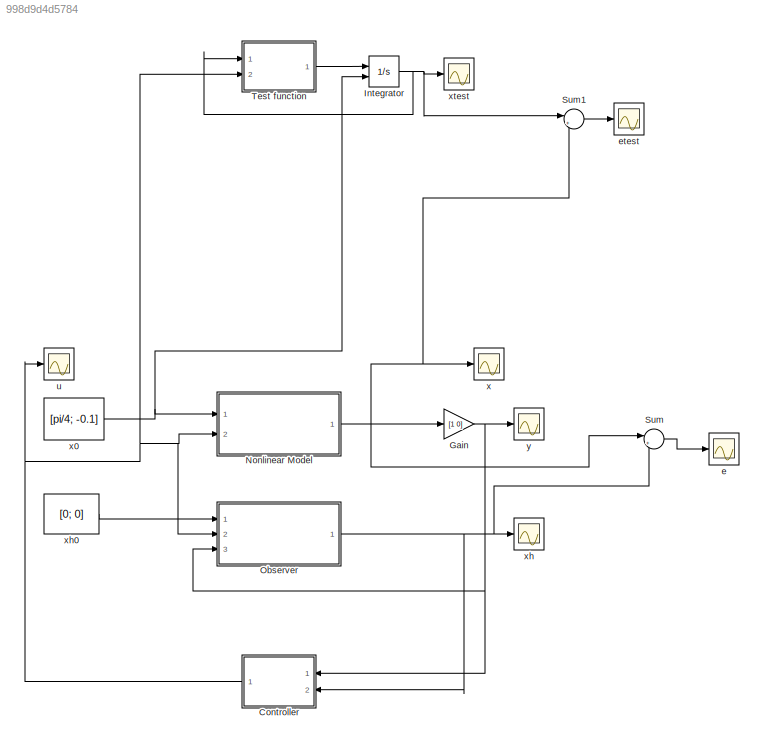
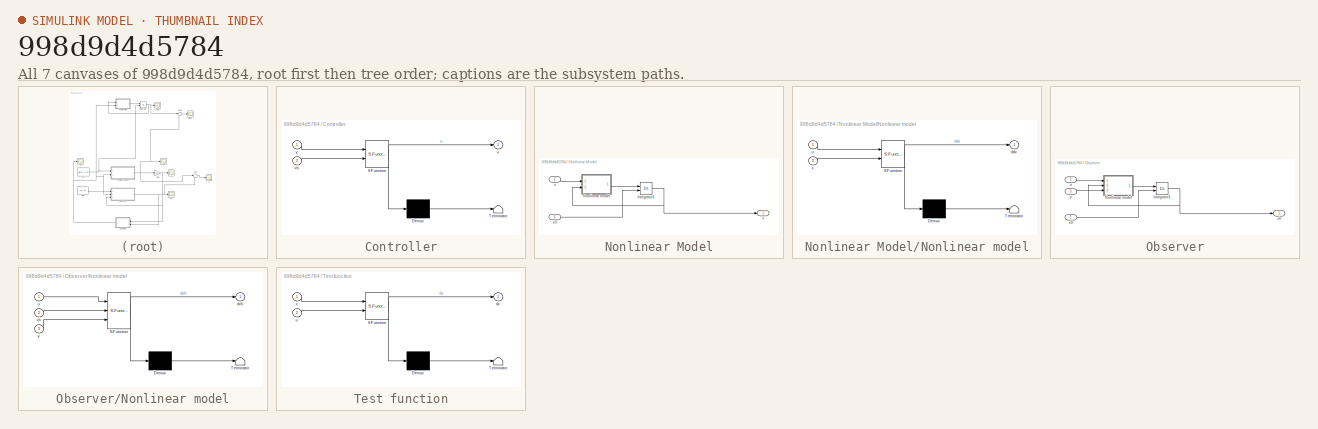
[diagram: thumbnail index - all 7 canvases of the model, root first then tree order]
MODEL slx_998d9d4d5784
KIND model
CONFIG AbsTol = auto
CONFIG FixedStep = auto
CONFIG MaxStep = auto
CONFIG MinStep = auto
CONFIG RelTol = 1e-5
CONFIG SampleTimeConstraint = Unconstrained
CONFIG Solver = VariableStepAuto
CONFIG SolverMode = Auto
CONFIG SolverName = VariableStepAuto
CONFIG StartTime = 0.0
CONFIG StopTime = 15
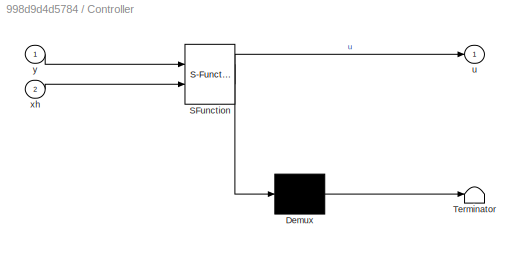
BLOCK [SubSystem] Controller
  ErrorFcn = Stateflow.Translate.translate
  PermitHierarchicalResolution = ExplicitOnly
  Ports = [2, 1]
  RequestExecContextInheritance = off
  SFBlockType = MATLAB Function
  TreatAsAtomicUnit = on
  Variant = off
BLOCK [Demux] Controller/ Demux 
  Outputs = 1
  Ports = [1, 1]
BLOCK [S-Function] Controller/ SFunction 
  EnableBusSupport = on
  FunctionName = sf_sfun
  PortCounts = [2 2]
  Ports = [2, 2]
  SFunctionDeploymentMode = off
  Tag = Stateflow S-Function mainSIM 3
BLOCK [Terminator] Controller/ Terminator 
BLOCK [Outport] Controller/u
  IconDisplay = Port number
BLOCK [Inport] Controller/xh
  IconDisplay = Port number
  Port = 2
BLOCK [Inport] Controller/y
  IconDisplay = Port number
BLOCK [Gain] Gain
  Gain = [1 0]
  Multiplication = Matrix(K*u) (u vector)
  OutDataTypeStr = Inherit: Inherit via internal rule
  ParamDataTypeStr = Inherit: Inherit via internal rule
  SaturateOnIntegerOverflow = off
BLOCK [Integrator] Integrator
  InitialConditionSource = external
  Ports = [2, 1]
BLOCK [SubSystem] Nonlinear Model
  Ports = [2, 1]
  RequestExecContextInheritance = off
  Variant = off
BLOCK [Integrator] Nonlinear Model/Integrator1
  InitialConditionSource = external
  Ports = [2, 1]
BLOCK [SubSystem] Nonlinear Model/Nonlinear model
  ErrorFcn = Stateflow.Translate.translate
  PermitHierarchicalResolution = ExplicitOnly
  Ports = [2, 1]
  RequestExecContextInheritance = off
  SFBlockType = MATLAB Function
  TreatAsAtomicUnit = on
  Variant = off
BLOCK [Demux] Nonlinear Model/Nonlinear model/ Demux 
  Outputs = 1
  Ports = [1, 1]
BLOCK [S-Function] Nonlinear Model/Nonlinear model/ SFunction 
  EnableBusSupport = on
  FunctionName = sf_sfun
  PortCounts = [2 2]
  Ports = [2, 2]
  SFunctionDeploymentMode = off
  Tag = Stateflow S-Function mainSIM 2
BLOCK [Terminator] Nonlinear Model/Nonlinear model/ Terminator 
BLOCK [Outport] Nonlinear Model/Nonlinear model/ddx
  IconDisplay = Port number
BLOCK [Inport] Nonlinear Model/Nonlinear model/u
  IconDisplay = Port number
BLOCK [Inport] Nonlinear Model/Nonlinear model/x
  IconDisplay = Port number
  Port = 2
BLOCK [Inport] Nonlinear Model/u
  IconDisplay = Port number
  Port = 2
BLOCK [Outport] Nonlinear Model/x
  IconDisplay = Port number
BLOCK [Inport] Nonlinear Model/x0
  IconDisplay = Port number
BLOCK [SubSystem] Observer
  Ports = [3, 1]
  RequestExecContextInheritance = off
  Variant = off
BLOCK [Integrator] Observer/Integrator1
  InitialConditionSource = external
  Ports = [2, 1]
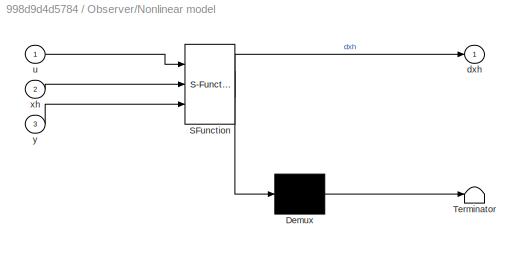
BLOCK [SubSystem] Observer/Nonlinear model
  ErrorFcn = Stateflow.Translate.translate
  PermitHierarchicalResolution = ExplicitOnly
  Ports = [3, 1]
  RequestExecContextInheritance = off
  SFBlockType = MATLAB Function
  TreatAsAtomicUnit = on
  Variant = off
BLOCK [Demux] Observer/Nonlinear model/ Demux 
  Outputs = 1
  Ports = [1, 1]
BLOCK [S-Function] Observer/Nonlinear model/ SFunction 
  EnableBusSupport = on
  FunctionName = sf_sfun
  PortCounts = [3 2]
  Ports = [3, 2]
  SFunctionDeploymentMode = off
  Tag = Stateflow S-Function mainSIM 1
BLOCK [Terminator] Observer/Nonlinear model/ Terminator 
BLOCK [Outport] Observer/Nonlinear model/dxh
  IconDisplay = Port number
BLOCK [Inport] Observer/Nonlinear model/u
  IconDisplay = Port number
BLOCK [Inport] Observer/Nonlinear model/xh
  IconDisplay = Port number
  Port = 2
BLOCK [Inport] Observer/Nonlinear model/y
  IconDisplay = Port number
  Port = 3
BLOCK [Inport] Observer/u
  IconDisplay = Port number
  Port = 2
BLOCK [Inport] Observer/x0
  IconDisplay = Port number
BLOCK [Outport] Observer/xh
  IconDisplay = Port number
BLOCK [Inport] Observer/y
  IconDisplay = Port number
  Port = 3
BLOCK [Sum] Sum
  IconShape = round
  InputSameDT = off
  Inputs = |+-
  OutDataTypeStr = Inherit: Inherit via internal rule
  Ports = [2, 1]
  SaturateOnIntegerOverflow = off
BLOCK [Sum] Sum1
  IconShape = round
  InputSameDT = off
  Inputs = |+-
  OutDataTypeStr = Inherit: Inherit via internal rule
  Ports = [2, 1]
  SaturateOnIntegerOverflow = off
BLOCK [SubSystem] Test function
  ErrorFcn = Stateflow.Translate.translate
  PermitHierarchicalResolution = ExplicitOnly
  Ports = [2, 1]
  RequestExecContextInheritance = off
  SFBlockType = MATLAB Function
  TreatAsAtomicUnit = on
  Variant = off
BLOCK [Demux] Test function/ Demux 
  Outputs = 1
  Ports = [1, 1]
BLOCK [S-Function] Test function/ SFunction 
  EnableBusSupport = on
  FunctionName = sf_sfun
  PortCounts = [2 2]
  Ports = [2, 2]
  SFunctionDeploymentMode = off
  Tag = Stateflow S-Function mainSIM 4
BLOCK [Terminator] Test function/ Terminator 
BLOCK [Outport] Test function/dx
  IconDisplay = Port number
BLOCK [Inport] Test function/u
  IconDisplay = Port number
  Port = 2
BLOCK [Inport] Test function/x
  IconDisplay = Port number
BLOCK [Scope] e
  Ports = [1]
  ScopeSpecificationString = Simulink.scopes.TimeScopeBlockCfg('CurrentConfiguration', extmgr.ConfigurationSet(extmgr.Configuration('Core','General UI',true),extmgr.Configuration('Core','Source UI',true),extmgr.Configuration('Sources','WiredSimulink',true,'DataLoggingVariableName','e','DataLogging',true,'DataLoggingSaveFormat','StructureWithTime'),extmgr.Configuration('Visuals','Time Domain',true,'SerializedDisplays',{struct(...<+1475ch>
BLOCK [Scope] etest
  Ports = [1]
  ScopeSpecificationString = Simulink.scopes.TimeScopeBlockCfg('CurrentConfiguration', extmgr.ConfigurationSet(extmgr.Configuration('Core','General UI',true),extmgr.Configuration('Core','Source UI',true),extmgr.Configuration('Sources','WiredSimulink',true,'DataLoggingVariableName','ScopeData6'),extmgr.Configuration('Visuals','Time Domain',true,'SerializedDisplays',{struct('MinYLimReal','-0.00000000000000015','MaxYLimReal','0....<+1523ch>
BLOCK [Scope] u 
  Ports = [1]
  ScopeSpecificationString = Simulink.scopes.TimeScopeBlockCfg('CurrentConfiguration', extmgr.ConfigurationSet(extmgr.Configuration('Core','General UI',true),extmgr.Configuration('Core','Source UI',true),extmgr.Configuration('Sources','WiredSimulink',true,'DataLoggingVariableName','ScopeData4'),extmgr.Configuration('Visuals','Time Domain',true,'SerializedDisplays',{struct('MinYLimReal','-0.32576','MaxYLimReal','0.33075','YLab...<+1445ch>
BLOCK [Scope] x
  Ports = [1]
  ScopeSpecificationString = Simulink.scopes.TimeScopeBlockCfg('CurrentConfiguration', extmgr.ConfigurationSet(extmgr.Configuration('Core','General UI',true),extmgr.Configuration('Core','Source UI',true),extmgr.Configuration('Sources','WiredSimulink',true,'DataLogging',true,'DataLoggingVariableName','x','DataLoggingSaveFormat','StructureWithTime'),extmgr.Configuration('Visuals','Time Domain',true,'SerializedDisplays',{struct(...<+1485ch>
BLOCK [Constant] x0
  Value = [pi/4; -0.1]
BLOCK [Scope] xh
  Ports = [1]
  ScopeSpecificationString = Simulink.scopes.TimeScopeBlockCfg('CurrentConfiguration', extmgr.ConfigurationSet(extmgr.Configuration('Core','General UI',true),extmgr.Configuration('Core','Source UI',true),extmgr.Configuration('Sources','WiredSimulink',true,'DataLoggingVariableName','xh','DataLogging',true,'DataLoggingSaveFormat','StructureWithTime'),extmgr.Configuration('Visuals','Time Domain',true,'SerializedDisplays',{struct...<+1491ch>
BLOCK [Constant] xh0
  Value = [0; 0]
BLOCK [Scope] xtest
  Ports = [1]
  ScopeSpecificationString = Simulink.scopes.TimeScopeBlockCfg('CurrentConfiguration', extmgr.ConfigurationSet(extmgr.Configuration('Core','General UI',true),extmgr.Configuration('Core','Source UI',true),extmgr.Configuration('Sources','WiredSimulink',true,'DataLoggingVariableName','ScopeData5'),extmgr.Configuration('Visuals','Time Domain',true,'SerializedDisplays',{struct('MinYLimReal','-2.17132','MaxYLimReal','1.11392','YLab...<+1418ch>
BLOCK [Scope] y
  Ports = [1]
  ScopeSpecificationString = Simulink.scopes.TimeScopeBlockCfg('CurrentConfiguration', extmgr.ConfigurationSet(extmgr.Configuration('Core','General UI',true),extmgr.Configuration('Core','Source UI',true),extmgr.Configuration('Sources','WiredSimulink',true,'DataLoggingVariableName','ScopeData1'),extmgr.Configuration('Visuals','Time Domain',true,'SerializedDisplays',{struct('MinYLimReal','-0.34919','MaxYLimReal','0.91146','YLab...<+1395ch>
NET Controller:1 -> Nonlinear Model:2, Observer:2, Test function:2, u :1
NET Gain:1 -> Controller:1, Observer:3, y:1
NET Integrator:1 -> Sum1:1, Test function:1, xtest:1
NET Nonlinear Model/Integrator1:1 -> Nonlinear Model/Nonlinear model:2, Nonlinear Model/x:1
LINE Nonlinear Model/Nonlinear model:1 -> Nonlinear Model/Integrator1:1
LINE Nonlinear Model/u:1 -> Nonlinear Model/Nonlinear model:1
LINE Nonlinear Model/x0:1 -> Nonlinear Model/Integrator1:2
NET Nonlinear Model:1 -> Gain:1, Sum1:2, Sum:1, x:1
NET Observer/Integrator1:1 -> Observer/Nonlinear model:2, Observer/xh:1
LINE Observer/Nonlinear model:1 -> Observer/Integrator1:1
LINE Observer/u:1 -> Observer/Nonlinear model:1
LINE Observer/x0:1 -> Observer/Integrator1:2
LINE Observer/y:1 -> Observer/Nonlinear model:3
NET Observer:1 -> Controller:2, Sum:2, xh:1
LINE Sum1:1 -> etest:1
LINE Sum:1 -> e:1
LINE Test function:1 -> Integrator:1
NET x0:1 -> Integrator:2, Nonlinear Model:1
LINE xh0:1 -> Observer:1
note: NET lines group one-source signal fan-out (src -> all destinations, sorted); 1:1 wires keep LINE
CHART Observer/Nonlinear model states=1 transitions=1
  STATE_LABEL 'eML_blk_kernel()'
  STATE_LABEL "SCRIPT:\nfunction dxh = fcn(u,xh,y)\ncoder.extrinsic('mydxh');\ndxh= [0;0];\ndxh = mydxh(y,xh,u);\ny = u;"
CHART Nonlinear Model/Nonlinear model states=1 transitions=1
  STATE_LABEL 'eML_blk_kernel()'
  STATE_LABEL "SCRIPT:\nfunction ddx = fcn(u,x)\ncoder.extrinsic('mydx');\nddx= [0;0];\nddx = mydx(x,u);\ny = u;"
CHART Controller states=1 transitions=1
  STATE_LABEL 'eML_blk_kernel()'
  STATE_LABEL "SCRIPT:\nfunction u = fcn(y, xh)\ncoder.extrinsic('mycont');\nu = 0;\nu = mycont(y,xh);\n%u = -u;\ny = u;"
CHART Test function states=1 transitions=1
  STATE_LABEL 'eML_blk_kernel()'
  STATE_LABEL 'SCRIPT:\nfunction dx = fcn(x,u)\n%#codegen\n g = 9.8;\n m = 0.3;\n M = 15;\n d = 0.007;\n l = 0.3;\n J = 0.005;\n a = 1/( M+ m);\n% simulation params\nsigm = 4;               % radian/s\nx1 = x(1);\nx2 = x(2);\n\nalpha = ( J+ m* l^2)- a* m^2* l^2*cos(x1)^2;\nrho1 = (- d+2*sigm* a* m* l*cos(x1)*sin(x1))/alpha;\nrho2 = (- a* m* l*cos(x1))./alpha;\nrho3 =  m* l*sin(x1);\npsi = x2^2 + 2*sigm*x2;\ndx = [x2; rho1*x2+rho2*r...<+21ch>'
